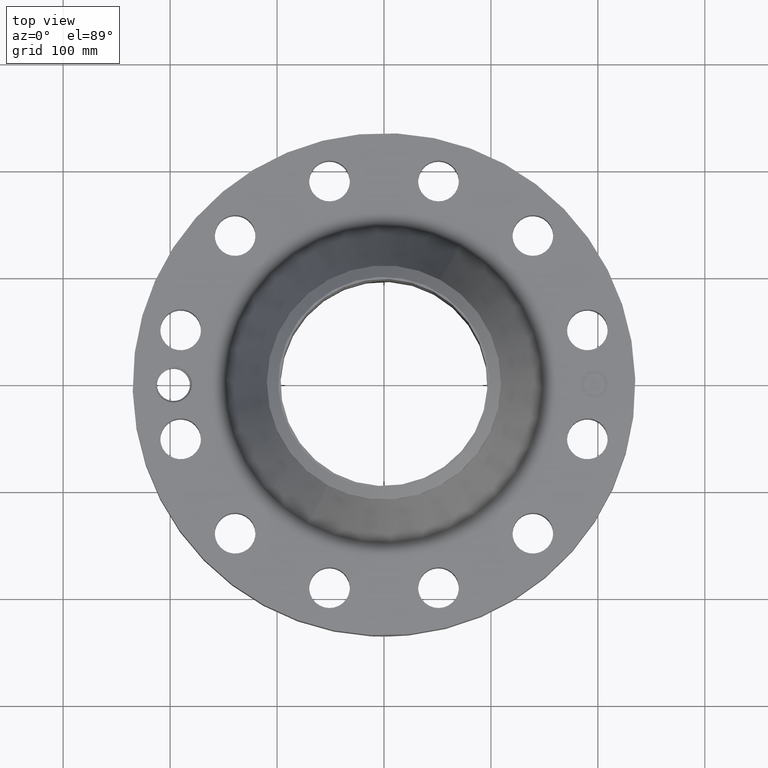
[diagram: clean part render]
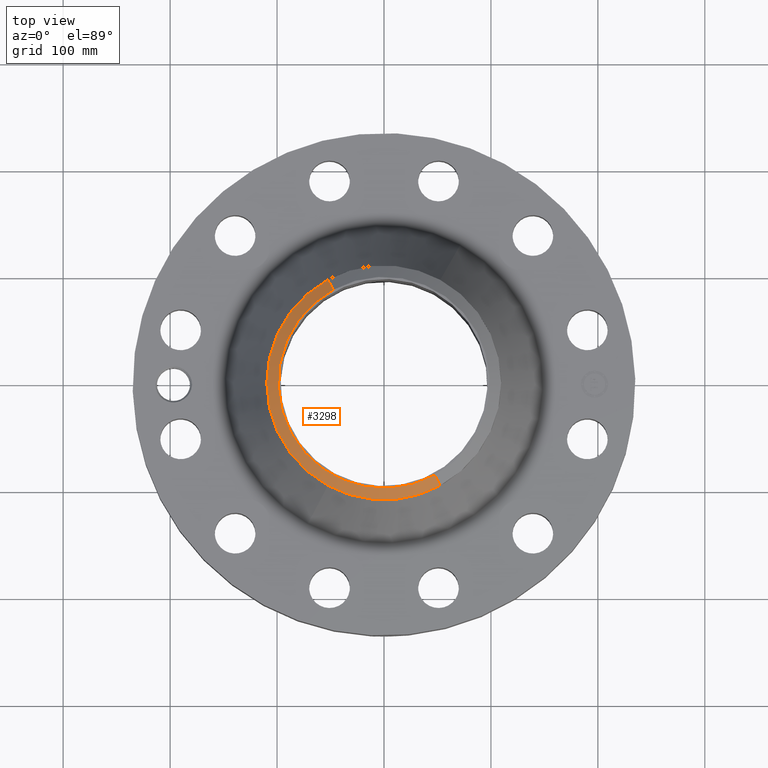
[diagram: same view with one face highlighted and labeled with its STEP entity id]
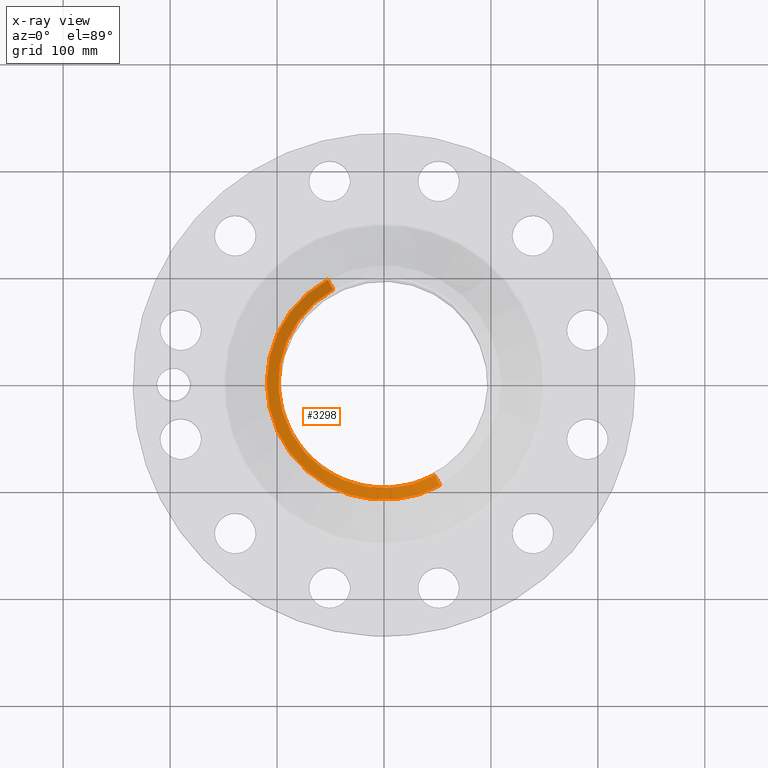
[diagram: x-ray of the same camera — body ghosted, the highlighted face saturated]
A machine part, top view. The second image highlights one B-rep face of the part: STEP entity #3298.
The next image is the same camera in x-ray: the body ghosted, the highlighted face saturated — about 0% of this face is hidden behind the body in this view.
In plain terms, the highlighted conical surface has half-angle 52.5 deg.
Its self-contained STEP definition (entity closure, byte-faithful):
#2439=AXIS2_PLACEMENT_3D('Circle Axis2P3D',#2437,#2438,$) ;
#3263=AXIS2_PLACEMENT_3D('Cone Axis2P3D',#3260,#3261,#3262) ;
#3281=AXIS2_PLACEMENT_3D('Circle Axis2P3D',#3279,#3280,$) ;
#3288=AXIS2_PLACEMENT_3D('Circle Axis2P3D',#3286,#3287,$) ;
#2432=CARTESIAN_POINT('Vertex',(1.86555990835,-3.41488450635,6.63000000003)) ;
#2434=CARTESIAN_POINT('Vertex',(-1.86555990835,3.41488450635,6.63000000003)) ;
#2437=CARTESIAN_POINT('Axis2P3D Location',(0.,0.,6.63000000003)) ;
#3260=CARTESIAN_POINT('Axis2P3D Location',(0.,0.,6.63000000003)) ;
#3265=CARTESIAN_POINT('Line Origine',(1.96714055372,-3.60082663046,6.46741881823)) ;
#3269=CARTESIAN_POINT('Vertex',(2.06872119909,-3.78676875457,6.30483763644)) ;
#3272=CARTESIAN_POINT('Line Origine',(-1.96714055372,3.60082663046,6.46741881823)) ;
#3276=CARTESIAN_POINT('Vertex',(-2.06872119909,3.78676875457,6.30483763644)) ;
#3279=CARTESIAN_POINT('Axis2P3D Location',(0.,0.,6.30483763644)) ;
#3283=CARTESIAN_POINT('Vertex',(-2.06872119909,-3.78676875457,6.30483763644)) ;
#3286=CARTESIAN_POINT('Axis2P3D Location',(0.,0.,6.30483763644)) ;
#2438=DIRECTION('Axis2P3D Direction',(0.,0.,-0.0393700787402)) ;
#3261=DIRECTION('Axis2P3D Direction',(-0.,-0.,-0.0393700787402)) ;
#3262=DIRECTION('Axis2P3D XDirection',(-0.0188750212049,0.0345504945626,0.)) ;
#3266=DIRECTION('Vector Direction',(0.014974561121,-0.02741075027,-0.023966985394)) ;
#3273=DIRECTION('Vector Direction',(-0.014974561121,0.02741075027,-0.023966985394)) ;
#3280=DIRECTION('Axis2P3D Direction',(0.,0.,-0.0393700787402)) ;
#3287=DIRECTION('Axis2P3D Direction',(0.,0.,-0.0393700787402)) ;
#3267=VECTOR('Line Direction',#3266,0.0393700787402) ;
#3274=VECTOR('Line Direction',#3273,0.0393700787402) ;
#3292=ORIENTED_EDGE('',*,*,#3271,.F.) ;
#3293=ORIENTED_EDGE('',*,*,#2441,.F.) ;
#3294=ORIENTED_EDGE('',*,*,#3278,.T.) ;
#3295=ORIENTED_EDGE('',*,*,#3285,.T.) ;
#3296=ORIENTED_EDGE('',*,*,#3290,.F.) ;
#3298=ADVANCED_FACE('PartBody',(#3297),#3264,.T.) ;
#2440=CIRCLE('generated circle',#2439,3.8912401575) ;
#3282=CIRCLE('generated circle',#3281,4.31500000002) ;
#3289=CIRCLE('generated circle',#3288,4.31500000002) ;
#3264=CONICAL_SURFACE('Cone',#3263,3.8912401575,0.916297857297) ;
#2441=EDGE_CURVE('',#2435,#2433,#2440,.F.) ;
#3271=EDGE_CURVE('',#2433,#3270,#3268,.T.) ;
#3278=EDGE_CURVE('',#2435,#3277,#3275,.T.) ;
#3285=EDGE_CURVE('',#3277,#3284,#3282,.F.) ;
#3290=EDGE_CURVE('',#3270,#3284,#3289,.T.) ;
#3291=EDGE_LOOP('',(#3292,#3293,#3294,#3295,#3296)) ;
#3297=FACE_OUTER_BOUND('',#3291,.T.) ;
#3268=LINE('Line',#3265,#3267) ;
#3275=LINE('Line',#3272,#3274) ;
#2433=VERTEX_POINT('',#2432) ;
#2435=VERTEX_POINT('',#2434) ;
#3270=VERTEX_POINT('',#3269) ;
#3277=VERTEX_POINT('',#3276) ;
#3284=VERTEX_POINT('',#3283) ;